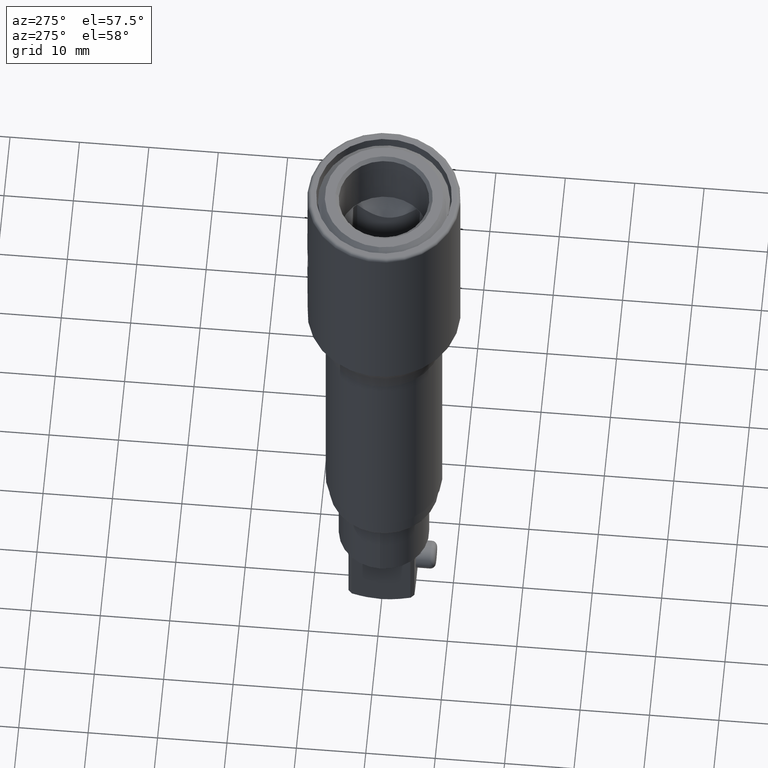
[diagram: clean part render]
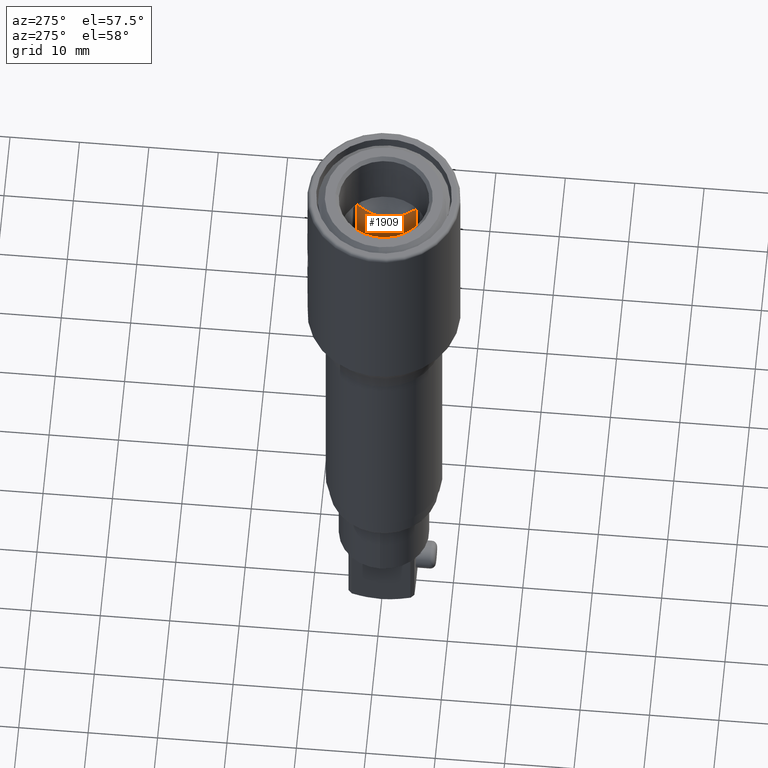
[diagram: same view with one face highlighted and labeled with its STEP entity id]
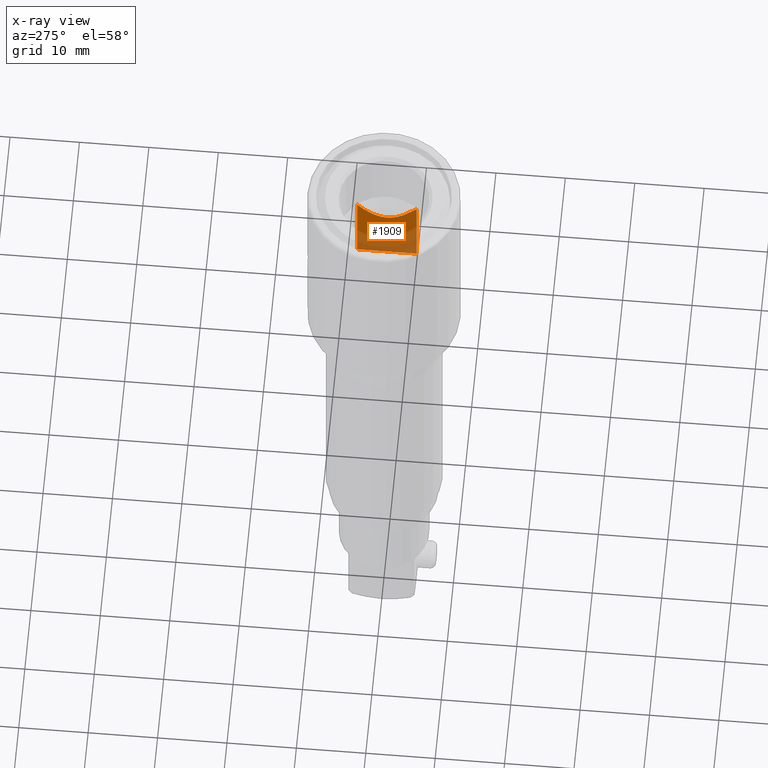
[diagram: x-ray of the same camera — body ghosted, the highlighted face saturated]
A machine part, auxiliary view. The second image highlights one B-rep face of the part: STEP entity #1909.
The next image is the same camera in x-ray: the body ghosted, the highlighted face saturated — about 46% of this face is hidden behind the body in this view.
In plain terms, the highlighted planar face has unit normal (1, 0, 0).
Its self-contained STEP definition (entity closure, byte-faithful):
#592=DIRECTION('',(1.E0,0.E0,0.E0));
#593=VECTOR('',#592,8.588910000693E0);
#594=CARTESIAN_POINT('',(-4.294455000346E0,4.8125E0,2.2E1));
#595=LINE('',#594,#593);
#637=DIRECTION('',(0.E0,0.E0,1.E0));
#638=VECTOR('',#637,1.191339745962E1);
#639=CARTESIAN_POINT('',(4.294455000346E0,4.8125E0,1.008660254038E1));
#640=LINE('',#639,#638);
#644=CARTESIAN_POINT('',(-4.294455000346E0,4.8125E0,1.008660254038E1));
#645=CARTESIAN_POINT('',(-4.028219131774E0,4.8125E0,1.039362880888E1));
#646=CARTESIAN_POINT('',(-3.507326984570E0,4.8125E0,1.096265625257E1));
#647=CARTESIAN_POINT('',(-2.753440946590E0,4.8125E0,1.167650826630E1));
#648=CARTESIAN_POINT('',(-2.022268933803E0,4.8125E0,1.224150447862E1));
#649=CARTESIAN_POINT('',(-1.308714649119E0,4.8125E0,1.264647353583E1));
#650=CARTESIAN_POINT('',(-6.321824482238E-1,4.8125E0,1.287645948092E1));
#651=CARTESIAN_POINT('',(9.289255882539E-3,4.8125E0,1.294708836026E1));
#652=CARTESIAN_POINT('',(6.509385714875E-1,4.8125E0,1.287210774069E1));
#653=CARTESIAN_POINT('',(1.325373970339E0,4.8125E0,1.263842555576E1));
#654=CARTESIAN_POINT('',(2.032723628395E0,4.8125E0,1.223404603778E1));
#655=CARTESIAN_POINT('',(2.760229755276E0,4.8125E0,1.167044233723E1));
#656=CARTESIAN_POINT('',(3.510478775983E0,4.8125E0,1.095924846343E1));
#657=CARTESIAN_POINT('',(4.029263667578E0,4.8125E0,1.039242423817E1));
#658=CARTESIAN_POINT('',(4.294455000346E0,4.8125E0,1.008660254038E1));
#663=DIRECTION('',(0.E0,0.E0,1.E0));
#664=VECTOR('',#663,1.191339745962E1);
#665=CARTESIAN_POINT('',(-4.294455000346E0,4.8125E0,1.008660254038E1));
#666=LINE('',#665,#664);
#1377=CARTESIAN_POINT('',(-4.294455000346E0,4.8125E0,2.2E1));
#1378=CARTESIAN_POINT('',(4.294455000346E0,4.8125E0,2.2E1));
#1379=VERTEX_POINT('',#1377);
#1380=VERTEX_POINT('',#1378);
#1499=VERTEX_POINT('',#644);
#1500=VERTEX_POINT('',#658);
#1897=CARTESIAN_POINT('',(-4.294455000346E0,4.8125E0,0.E0));
#1898=DIRECTION('',(0.E0,1.E0,0.E0));
#1899=DIRECTION('',(1.E0,0.E0,0.E0));
#1900=AXIS2_PLACEMENT_3D('',#1897,#1898,#1899);
#1901=PLANE('',#1900);
#1902=ORIENTED_EDGE('',*,*,#1781,.F.);
#1904=ORIENTED_EDGE('',*,*,#1903,.T.);
#1905=ORIENTED_EDGE('',*,*,#1873,.T.);
#1906=ORIENTED_EDGE('',*,*,#1890,.F.);
#1907=EDGE_LOOP('',(#1902,#1904,#1905,#1906));
#1908=FACE_OUTER_BOUND('',#1907,.F.);
#1909=ADVANCED_FACE('',(#1908),#1901,.F.);
#659=B_SPLINE_CURVE_WITH_KNOTS('',3,(#644,#645,#646,#647,#648,#649,#650,#651,
#652,#653,#654,#655,#656,#657,#658),.UNSPECIFIED.,.F.,.F.,(4,1,1,1,1,1,1,1,1,1,
1,1,4),(0.E0,8.333333333333E-2,1.666666666667E-1,2.5E-1,3.333333333333E-1,
4.166666666667E-1,5.E-1,5.833333333333E-1,6.666666666667E-1,7.5E-1,
8.333333333333E-1,9.166666666667E-1,1.E0),.UNSPECIFIED.);
#1781=EDGE_CURVE('',#1499,#1500,#659,.T.);
#1873=EDGE_CURVE('',#1379,#1380,#595,.T.);
#1890=EDGE_CURVE('',#1500,#1380,#640,.T.);
#1903=EDGE_CURVE('',#1499,#1379,#666,.T.);